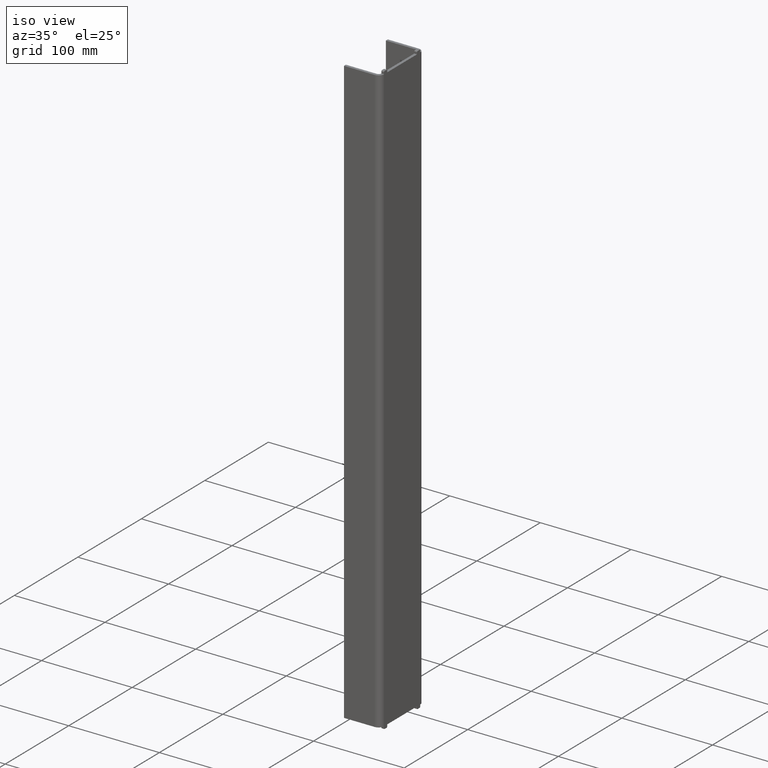
[diagram: clean part render]
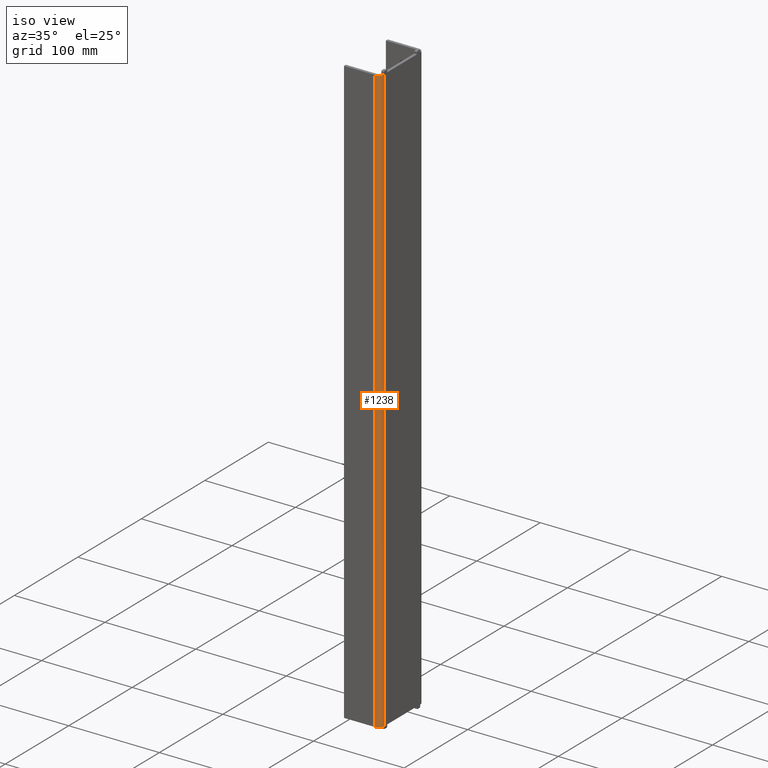
[diagram: same view with one face highlighted and labeled with its STEP entity id]
A machine part, iso view. The second image highlights one B-rep face of the part: STEP entity #1238.
In plain terms, the highlighted cylindrical surface (edge-blend (fillet) strip) has radius 6 mm, axis along (0, 0, -1).
Its self-contained STEP definition (entity closure, byte-faithful):
#3 = EDGE_CURVE ( 'NONE', #1219, #1090, #300, .T. ) ;
#40 = CARTESIAN_POINT ( 'NONE',  ( 343.9999999999996589, -1160.305262667904117, 25.00000000000045119 ) ) ;
#59 = VERTEX_POINT ( 'NONE', #927 ) ;
#137 = CARTESIAN_POINT ( 'NONE',  ( 349.9999999999996589, -1160.305262667904117, 25.00000000000045119 ) ) ;
#162 = EDGE_CURVE ( 'NONE', #670, #1090, #852, .T. ) ;
#223 = DIRECTION ( 'NONE',  ( -1.000000000000000000, 0.000000000000000000, 0.000000000000000000 ) ) ;
#241 = CARTESIAN_POINT ( 'NONE',  ( 343.9999999999996589, -1166.305262667904117, 25.00000000000045119 ) ) ;
#289 = AXIS2_PLACEMENT_3D ( 'NONE', #336, #1252, #1218 ) ;
#300 = LINE ( 'NONE', #505, #932 ) ;
#303 = LINE ( 'NONE', #322, #1206 ) ;
#322 = CARTESIAN_POINT ( 'NONE',  ( 343.9999999999996589, -1166.305262667904117, 104.7558775263622834 ) ) ;
#336 = CARTESIAN_POINT ( 'NONE',  ( 343.9999999999996589, -1160.305262667904117, -624.9999999999997726 ) ) ;
#492 = DIRECTION ( 'NONE',  ( 1.000000000000000000, 0.000000000000000000, 0.000000000000000000 ) ) ;
#505 = CARTESIAN_POINT ( 'NONE',  ( 349.9999999999996589, -1160.305262667904117, 104.7558775263622834 ) ) ;
#573 = AXIS2_PLACEMENT_3D ( 'NONE', #907, #687, #492 ) ;
#580 = ORIENTED_EDGE ( 'NONE', *, *, #162, .F. ) ;
#670 = VERTEX_POINT ( 'NONE', #241 ) ;
#687 = DIRECTION ( 'NONE',  ( 0.000000000000000000, 0.000000000000000000, -1.000000000000000000 ) ) ;
#688 = ORIENTED_EDGE ( 'NONE', *, *, #3, .T. ) ;
#697 = CIRCLE ( 'NONE', #289, 6.000000000000005329 ) ;
#751 = CARTESIAN_POINT ( 'NONE',  ( 349.9999999999996589, -1160.305262667904117, -624.9999999999997726 ) ) ;
#785 = EDGE_LOOP ( 'NONE', ( #580, #1128, #988, #688 ) ) ;
#821 = DIRECTION ( 'NONE',  ( 0.000000000000000000, 0.000000000000000000, 1.000000000000000000 ) ) ;
#852 = CIRCLE ( 'NONE', #1222, 6.000000000000005329 ) ;
#883 = CYLINDRICAL_SURFACE ( 'NONE', #573, 6.000000000000005329 ) ;
#907 = CARTESIAN_POINT ( 'NONE',  ( 343.9999999999996589, -1160.305262667904117, 104.7558775263622834 ) ) ;
#927 = CARTESIAN_POINT ( 'NONE',  ( 343.9999999999996589, -1166.305262667904117, -624.9999999999997726 ) ) ;
#932 = VECTOR ( 'NONE', #821, 1000.000000000000000 ) ;
#941 = DIRECTION ( 'NONE',  ( -0.000000000000000000, 0.000000000000000000, -1.000000000000000000 ) ) ;
#980 = FACE_OUTER_BOUND ( 'NONE', #785, .T. ) ;
#988 = ORIENTED_EDGE ( 'NONE', *, *, #1017, .F. ) ;
#1017 = EDGE_CURVE ( 'NONE', #1219, #59, #697, .T. ) ;
#1085 = EDGE_CURVE ( 'NONE', #670, #59, #303, .T. ) ;
#1090 = VERTEX_POINT ( 'NONE', #137 ) ;
#1128 = ORIENTED_EDGE ( 'NONE', *, *, #1085, .T. ) ;
#1206 = VECTOR ( 'NONE', #941, 1000.000000000000000 ) ;
#1218 = DIRECTION ( 'NONE',  ( -1.000000000000000000, 0.000000000000000000, 0.000000000000000000 ) ) ;
#1219 = VERTEX_POINT ( 'NONE', #751 ) ;
#1222 = AXIS2_PLACEMENT_3D ( 'NONE', #40, #1223, #223 ) ;
#1223 = DIRECTION ( 'NONE',  ( -0.000000000000000000, -0.000000000000000000, 1.000000000000000000 ) ) ;
#1238 = ADVANCED_FACE ( 'NONE', ( #980 ), #883, .T. ) ;
#1252 = DIRECTION ( 'NONE',  ( 0.000000000000000000, 0.000000000000000000, -1.000000000000000000 ) ) ;